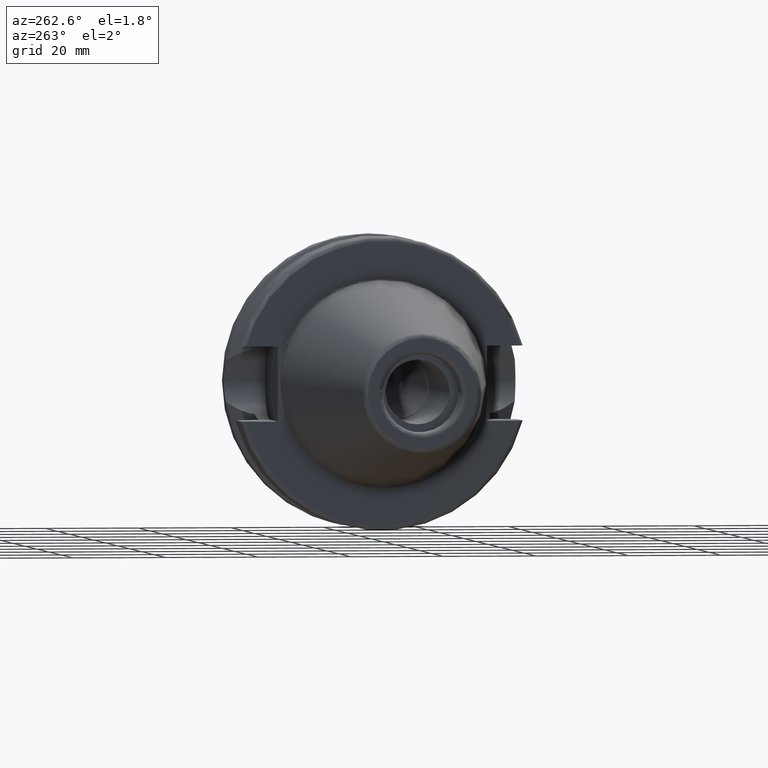
[diagram: clean part render]
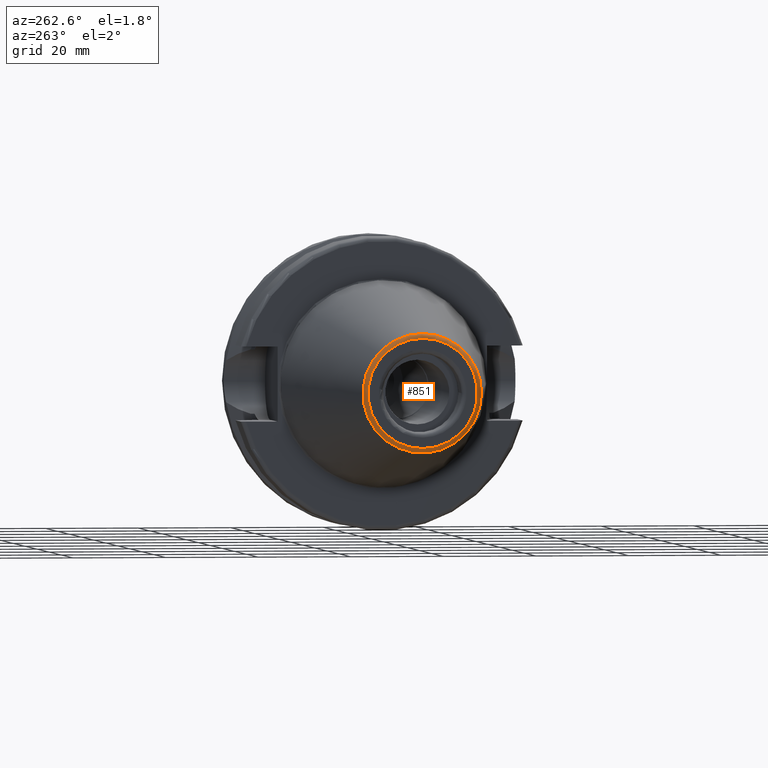
[diagram: same view with one face highlighted and labeled with its STEP entity id]
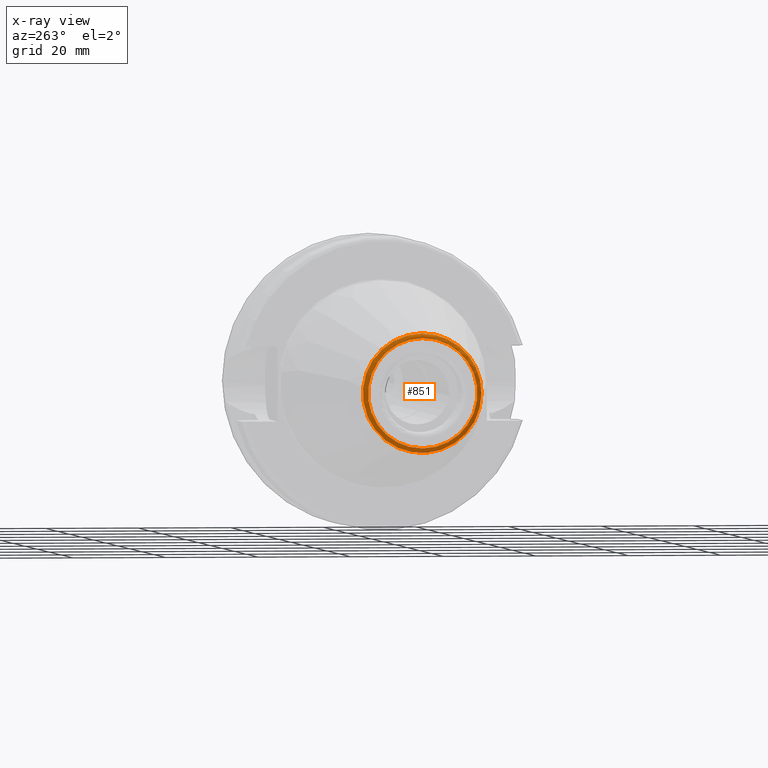
[diagram: x-ray of the same camera — body ghosted, the highlighted face saturated]
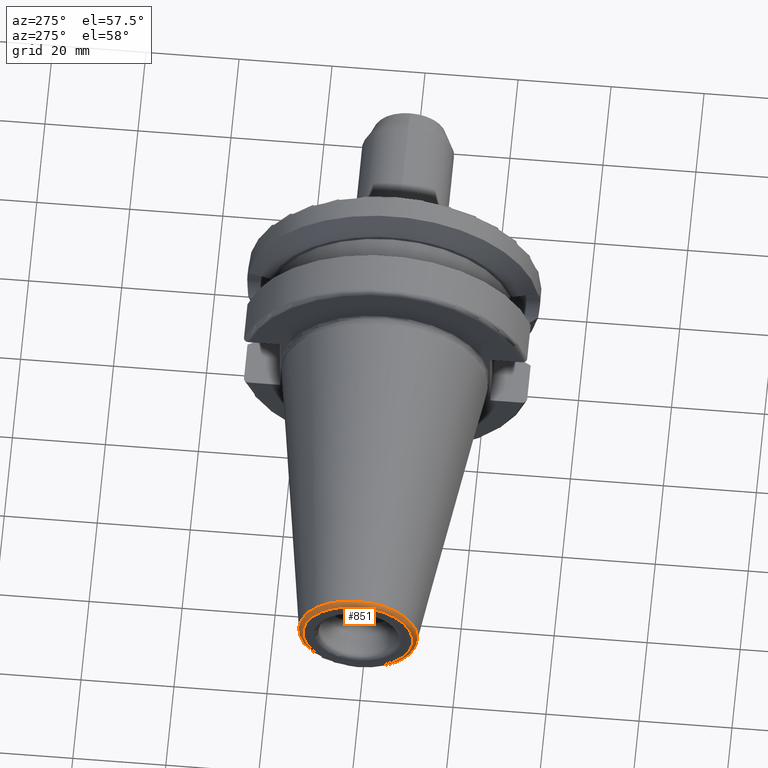
[diagram: same view with one face highlighted and labeled with its STEP entity id]
A machine part, auxiliary view. The second image highlights one B-rep face of the part: STEP entity #851.
The next image is the same camera in x-ray: the body ghosted, the highlighted face saturated — about 0% of this face is hidden behind the body in this view.
A second angle (auxiliary view) of the same face is appended — the face is thin or edge-on in the first view.
In plain terms, the highlighted toroidal blend (fillet) surface has major radius 11.8228 mm and minor (blend) radius 1 mm.
Its self-contained STEP definition (entity closure, byte-faithful):
#48=TOROIDAL_SURFACE('',#956,11.8227555970304,0.999999999999996);
#92=CIRCLE('',#957,12.8122885780937);
#93=CIRCLE('',#958,12.8122885780937);
#94=CIRCLE('',#959,0.999999999999996);
#95=CIRCLE('',#960,11.8227555970304);
#164=FACE_OUTER_BOUND('',#219,.T.);
#219=EDGE_LOOP('',(#732,#733,#734,#735,#736));
#423=VERTEX_POINT('',#1769);
#424=VERTEX_POINT('',#1770);
#425=VERTEX_POINT('',#1773);
#534=EDGE_CURVE('',#423,#424,#92,.T.);
#535=EDGE_CURVE('',#424,#423,#93,.T.);
#536=EDGE_CURVE('',#424,#425,#94,.T.);
#537=EDGE_CURVE('',#425,#425,#95,.T.);
#732=ORIENTED_EDGE('',*,*,#534,.F.);
#733=ORIENTED_EDGE('',*,*,#535,.F.);
#734=ORIENTED_EDGE('',*,*,#536,.T.);
#735=ORIENTED_EDGE('',*,*,#537,.T.);
#736=ORIENTED_EDGE('',*,*,#536,.F.);
#851=ADVANCED_FACE('',(#164),#48,.T.);
#956=AXIS2_PLACEMENT_3D('',#1768,#1169,#1170);
#957=AXIS2_PLACEMENT_3D('',#1771,#1171,#1172);
#958=AXIS2_PLACEMENT_3D('',#1772,#1173,#1174);
#959=AXIS2_PLACEMENT_3D('',#1774,#1175,#1176);
#960=AXIS2_PLACEMENT_3D('',#1775,#1177,#1178);
#1169=DIRECTION('center_axis',(1.,0.,0.));
#1170=DIRECTION('ref_axis',(0.,0.,-1.));
#1171=DIRECTION('center_axis',(1.,0.,0.));
#1172=DIRECTION('ref_axis',(0.,0.,-1.));
#1173=DIRECTION('center_axis',(1.,0.,0.));
#1174=DIRECTION('ref_axis',(0.,0.,-1.));
#1175=DIRECTION('center_axis',(0.,-1.,-1.22464679914735E-16));
#1176=DIRECTION('ref_axis',(0.,-1.22464679914735E-16,1.));
#1177=DIRECTION('center_axis',(1.,0.,0.));
#1178=DIRECTION('ref_axis',(0.,0.,-1.));
#1768=CARTESIAN_POINT('Origin',(-64.4,0.,0.));
#1769=CARTESIAN_POINT('',(-64.5443068930717,-12.8122885780937,-1.56905281969147E-15));
#1770=CARTESIAN_POINT('',(-64.5443068930717,-1.56905281969147E-15,12.8122885780937));
#1771=CARTESIAN_POINT('Origin',(-64.5443068930717,0.,0.));
#1772=CARTESIAN_POINT('Origin',(-64.5443068930717,0.,0.));
#1773=CARTESIAN_POINT('',(-65.4,-1.44786997990048E-15,11.8227555970304));
#1774=CARTESIAN_POINT('Origin',(-64.4,-1.44786997990048E-15,11.8227555970304));
#1775=CARTESIAN_POINT('Origin',(-65.4,0.,0.));